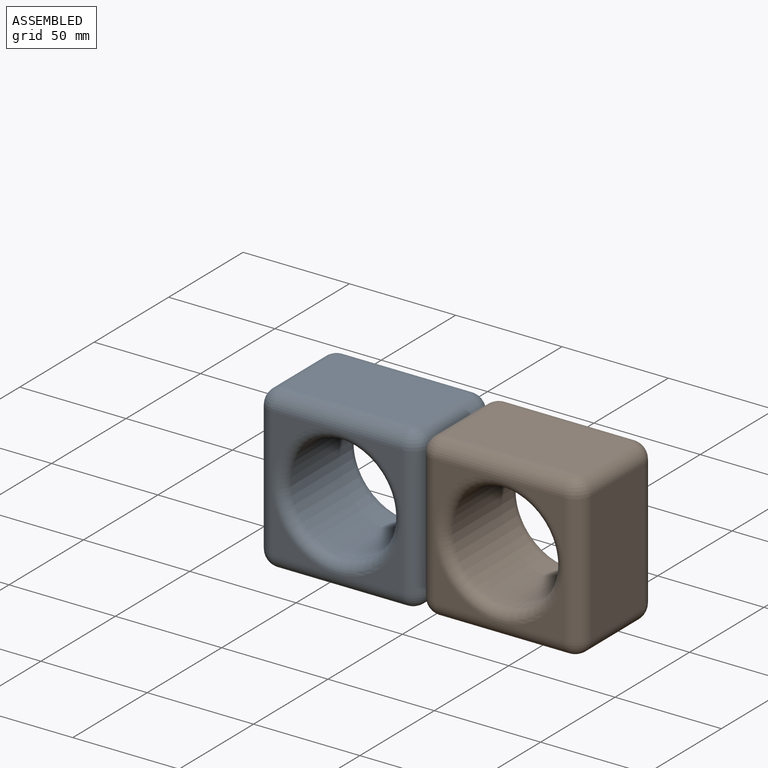
[diagram: assembled view]
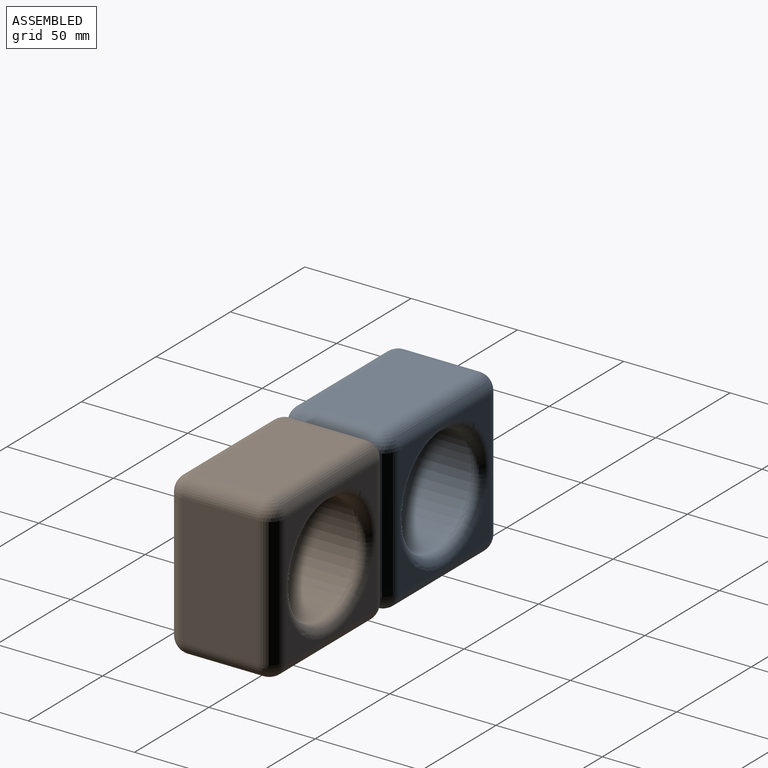
[diagram: assembled view, second angle]
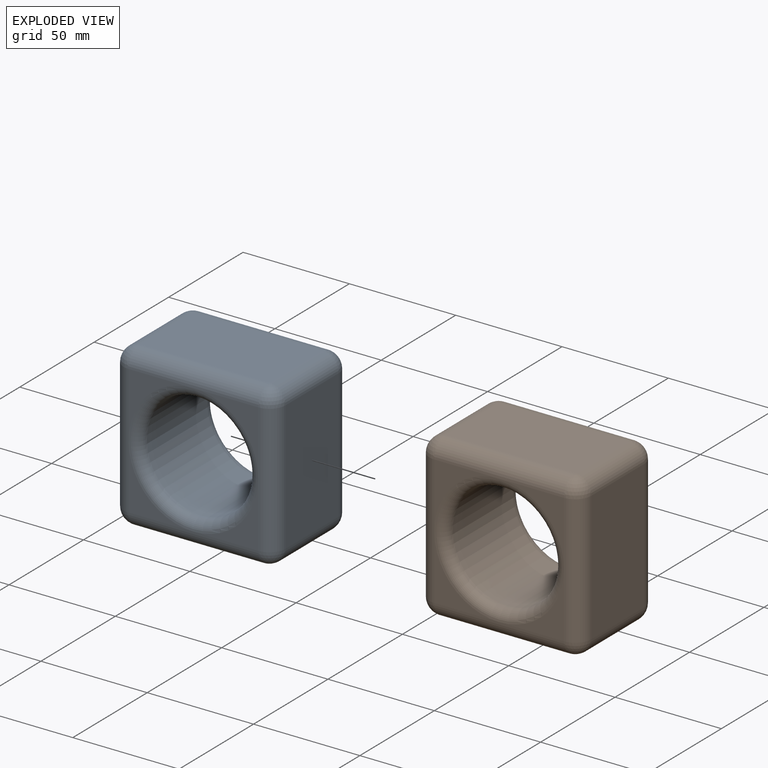
[diagram: exploded view]
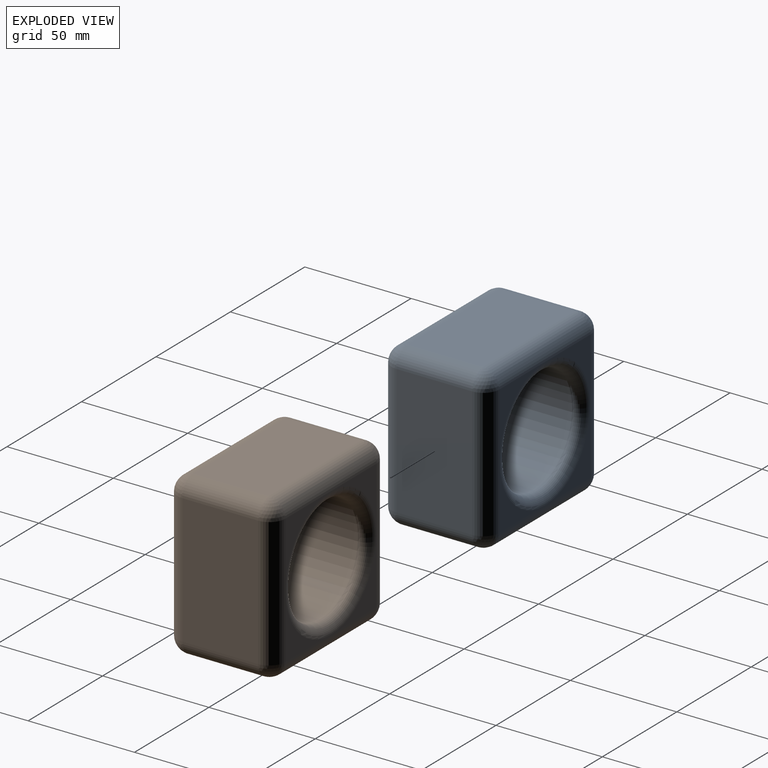
[diagram: exploded view, second angle]
ASSEMBLY  parts=2 mates=2
PART A: 35 faces, bbox 76.2x50.8x76.2 mm
  f0: plane 30.48x30.48mm, normal (0,-1,0), area 199.4mm2, adj f27,f31,f34
  f1: plane 30.48x30.48mm, normal (0,-1,0), area 199.4mm2, adj f26,f31,f34
  f2: plane 30.48x30.48mm, normal (0,-1,0), area 199.4mm2, adj f17,f26,f34
  f3: plane 30.48x30.48mm, normal (0,1,0), area 199.4mm2, adj f15,f20,f33
  f4: plane 30.48x30.48mm, normal (0,1,0), area 199.4mm2, adj f19,f20,f33
  f5: plane 30.48x30.48mm, normal (0,1,0), area 199.4mm2, adj f12,f19,f33
  f6: plane 60.96x35.56mm, normal (-1,0,0), area 2167.7mm2, adj f20,f25,f28,f31
  f7: plane 30.48x30.48mm, normal (0,-1,0), area 199.4mm2, adj f17,f27,f34
  f8: plane 60.96x35.56mm, normal (1,0,0), area 2167.7mm2, adj f12,f16,f17,f18
  f9: plane 30.48x30.48mm, normal (0,1,0), area 199.4mm2, adj f12,f15,f33
  f10: plane 60.96x35.56mm, normal (0,0,1), area 2167.7mm2, adj f15,f16,f25,f26
  f11: plane 60.96x35.56mm, normal (0,0,-1), area 2167.7mm2, adj f18,f19,f27,f28
  f12: cylinder r=7.62mm len=60.96mm, axis (0,0,-1), area 729.7mm2, adj f5,f8,f9,f13,f14
  f13: sphere r=7.62mm, area 91.2mm2, adj f12,f15,f16
  f14: sphere r=7.62mm, area 91.2mm2, adj f12,f18,f19
  f15: cylinder r=7.62mm len=60.96mm, axis (1,0,0), area 729.7mm2, adj f3,f9,f10,f13,f21
  f16: cylinder r=7.62mm len=35.56mm, axis (0,-1,0), area 425.6mm2, adj f8,f10,f13,f22
  f17: cylinder r=7.62mm len=60.96mm, axis (0,0,1), area 729.7mm2, adj f2,f7,f8,f22,f23
  f18: cylinder r=7.62mm len=35.56mm, axis (0,1,0), area 425.6mm2, adj f8,f11,f14,f23
  f19: cylinder r=7.62mm len=60.96mm, axis (-1,0,0), area 729.7mm2, adj f4,f5,f11,f14,f24
  f20: cylinder r=7.62mm len=60.96mm, axis (0,0,1), area 729.7mm2, adj f3,f4,f6,f21,f24
  f21: sphere r=7.62mm, area 91.2mm2, adj f15,f20,f25
  f22: sphere r=7.62mm, area 91.2mm2, adj f16,f17,f26
  f23: sphere r=7.62mm, area 91.2mm2, adj f17,f18,f27
  f24: sphere r=7.62mm, area 91.2mm2, adj f19,f20,f28
  f25: cylinder r=7.62mm len=35.56mm, axis (0,1,0), area 425.6mm2, adj f6,f10,f21,f29
  f26: cylinder r=7.62mm len=60.96mm, axis (-1,0,0), area 729.7mm2, adj f1,f2,f10,f22,f29
  f27: cylinder r=7.62mm len=60.96mm, axis (1,0,0), area 729.7mm2, adj f0,f7,f11,f23,f30
  f28: cylinder r=7.62mm len=35.56mm, axis (0,-1,0), area 425.6mm2, adj f6,f11,f24,f30
  f29: sphere r=7.62mm, area 91.2mm2, adj f25,f26,f31
  f30: sphere r=7.62mm, area 91.2mm2, adj f27,f28,f31
  f31: cylinder r=7.62mm len=60.96mm, axis (0,0,-1), area 729.7mm2, adj f0,f1,f6,f29,f30
  f32: cylinder r=25.4mm len=50.8mm, axis (0,-1,0), area 6485.9mm2, adj f33,f34
  f33: torus R=30.48mm, axis (0,1,0), area 1366mm2, adj f3,f4,f5,f9,f32
  f34: torus R=30.48mm, axis (0,1,0), area 1366mm2, adj f0,f1,f2,f7,f32
PART B: same geometry as A
PLACE A t=(31.94,71.97,-39.18)mm
PLACE B t=(108.14,71.97,-39.18)mm
MATE parallel A.f10 <-> B.f10  axis (0,0,1) through (-39.4,87.76,37.02)mm
MATE fastened A.f8 <-> B.f6  axis (1,0,0) through (-1.3,87.76,-1.08)mm
